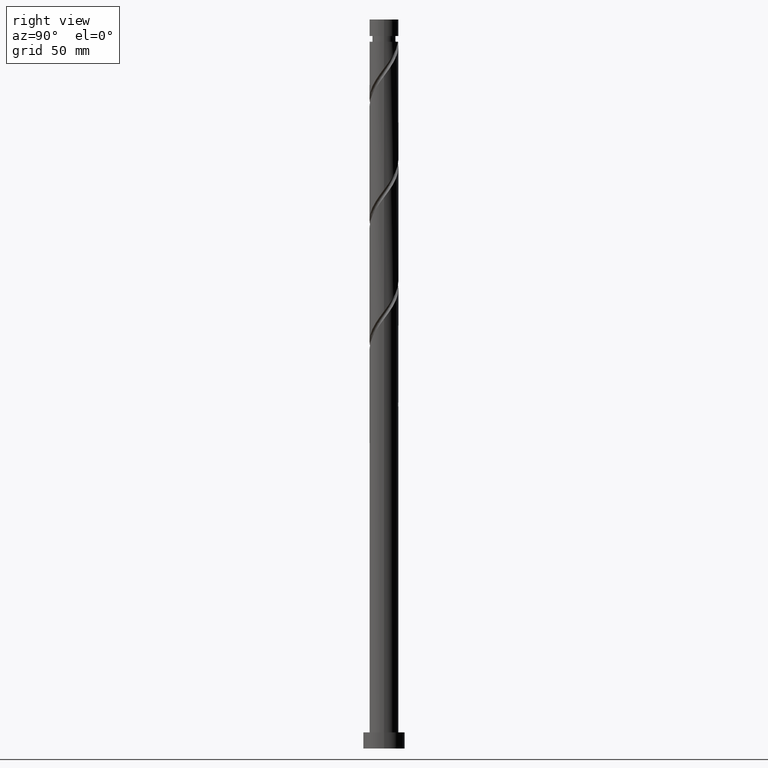
[diagram: clean part render]
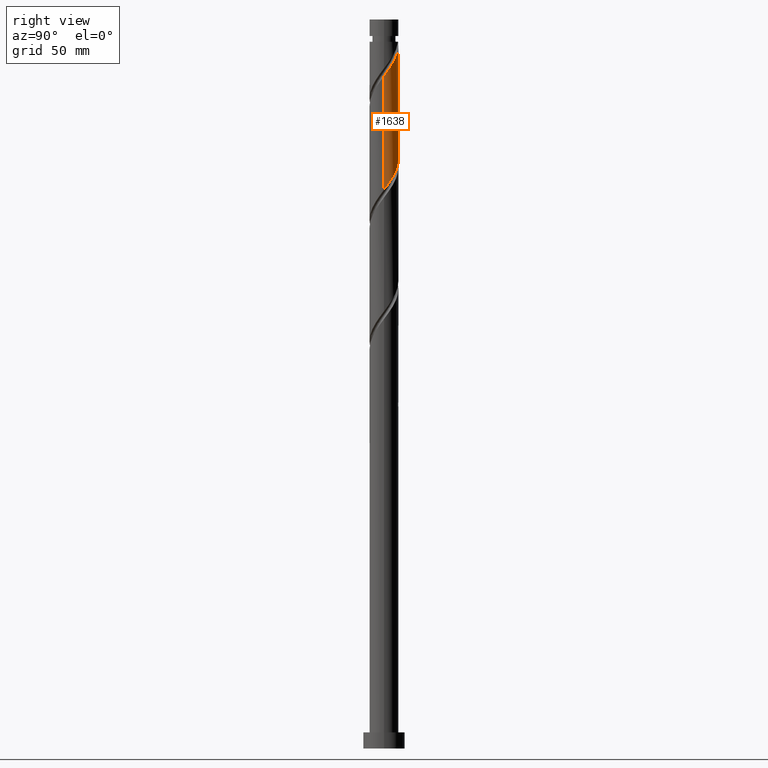
[diagram: same view with one face highlighted and labeled with its STEP entity id]
A machine part, right view. The second image highlights one B-rep face of the part: STEP entity #1638.
In plain terms, the highlighted cylindrical surface (edge-blend (fillet) strip) has radius 6.25 mm, axis along (-0, -0, -1).
Its self-contained STEP definition (entity closure, byte-faithful):
#6 = ORIENTED_EDGE ( 'NONE', *, *, #404, .F. ) ;
#17 = CARTESIAN_POINT ( 'NONE',  ( -5.984864800371902049, 1.933856053271457931, 265.0675190924107483 ) ) ;
#51 = CARTESIAN_POINT ( 'NONE',  ( 3.778103783078897937, 4.978798228918796198, 249.1300190924107483 ) ) ;
#55 = EDGE_CURVE ( 'NONE', #393, #477, #1153, .T. ) ;
#155 = CARTESIAN_POINT ( 'NONE',  ( 0.1503894396005508449, 6.248190379338386613, 303.5050190924108620 ) ) ;
#157 = CARTESIAN_POINT ( 'NONE',  ( -6.250000000000000888, 0.6281486345370177471, 266.8412650913532502 ) ) ;
#164 = CARTESIAN_POINT ( 'NONE',  ( 0.000000000000000000, 0.000000000000000000, 315.0000000000000000 ) ) ;
#177 = DIRECTION ( 'NONE',  ( -1.000000000000000000, 0.000000000000000000, 0.000000000000000000 ) ) ;
#179 = CARTESIAN_POINT ( 'NONE',  ( 6.231245559048651295, 0.8543914186961918400, 242.5675190924108051 ) ) ;
#200 = AXIS2_PLACEMENT_3D ( 'NONE', #595, #1012, #1595 ) ;
#276 = CARTESIAN_POINT ( 'NONE',  ( -6.250000000000000888, 7.089742422724978263E-16, 267.6795361703168510 ) ) ;
#312 = CARTESIAN_POINT ( 'NONE',  ( -3.473416191767960459, 5.243451713544183157, 259.4425190924107483 ) ) ;
#328 = CARTESIAN_POINT ( 'NONE',  ( 4.553108168431573510, 4.339079616700646902, 296.9425190924107483 ) ) ;
#336 = CARTESIAN_POINT ( 'NONE',  ( 6.250000000000001776, -2.291106235554282619E-15, 241.4295361703167657 ) ) ;
#350 = CARTESIAN_POINT ( 'NONE',  ( 1.933856053271459263, 5.984864800371902049, 251.9425190924107198 ) ) ;
#358 = CARTESIAN_POINT ( 'NONE',  ( 5.243451713544184045, 3.473416191767958683, 246.3175190924107767 ) ) ;
#370 = EDGE_CURVE ( 'NONE', #1806, #393, #818, .T. ) ;
#393 = VERTEX_POINT ( 'NONE', #276 ) ;
#404 = EDGE_CURVE ( 'NONE', #1802, #489, #1360, .T. ) ;
#423 = CARTESIAN_POINT ( 'NONE',  ( -6.250000000000000000, 0.000000000000000000, 315.0000000000000000 ) ) ;
#434 = CARTESIAN_POINT ( 'NONE',  ( 6.125000000000010658, 1.243734296383277149, 292.2550190924108051 ) ) ;
#460 = CARTESIAN_POINT ( 'NONE',  ( -4.553108168431563740, 4.339079616700646014, 261.3175190924108051 ) ) ;
#477 = VERTEX_POINT ( 'NONE', #336 ) ;
#478 = CARTESIAN_POINT ( 'NONE',  ( -1.243734296383331772, 6.124999999999954703, 305.3800190924108620 ) ) ;
#489 = VERTEX_POINT ( 'NONE', #478 ) ;
#499 = CARTESIAN_POINT ( 'NONE',  ( 4.791265665122413253, 4.013262180099761878, 247.2550190924107767 ) ) ;
#516 = CARTESIAN_POINT ( 'NONE',  ( 6.058070402885840977, 1.536972021111189912, 243.5050190924107198 ) ) ;
#581 = CARTESIAN_POINT ( 'NONE',  ( 6.250000000000010658, -1.813481482865430117E-15, 290.5805020145046456 ) ) ;
#595 = CARTESIAN_POINT ( 'NONE',  ( 0.000000000000000000, 0.000000000000000000, 305.3800190924107483 ) ) ;
#608 = CARTESIAN_POINT ( 'NONE',  ( -5.694676544888964465, 2.575492001364303896, 264.1300190924108051 ) ) ;
#629 = CARTESIAN_POINT ( 'NONE',  ( -0.1503894396005480971, 6.248190379338377731, 254.7550190924108335 ) ) ;
#638 = CIRCLE ( 'NONE', #200, 6.249999999999974243 ) ;
#646 = CARTESIAN_POINT ( 'NONE',  ( 6.250000000000001776, -2.291106235554282619E-15, 241.4295361703167657 ) ) ;
#783 = CARTESIAN_POINT ( 'NONE',  ( 0.5536125394950969225, 6.265135199628102392, 253.8175190924107483 ) ) ;
#791 = CARTESIAN_POINT ( 'NONE',  ( 3.217127949457151193, 5.404488289406027768, 250.0675190924107483 ) ) ;
#804 = ORIENTED_EDGE ( 'NONE', *, *, #1718, .T. ) ;
#818 = LINE ( 'NONE', #423, #1543 ) ;
#910 = CARTESIAN_POINT ( 'NONE',  ( -2.846484407647073223, 5.564173480133604244, 258.5050190924107483 ) ) ;
#916 = CARTESIAN_POINT ( 'NONE',  ( 5.694676544888975123, 2.575492001364305672, 294.1300190924108051 ) ) ;
#927 = CYLINDRICAL_SURFACE ( 'NONE', #1569, 6.250000000000000000 ) ;
#953 = CARTESIAN_POINT ( 'NONE',  ( -2.219552623526188651, 5.884895246723026219, 257.5675190924107483 ) ) ;
#1012 = DIRECTION ( 'NONE',  ( -0.000000000000000000, -0.000000000000000000, -1.000000000000000000 ) ) ;
#1040 = CARTESIAN_POINT ( 'NONE',  ( 4.013262180099769871, 4.791265665122420359, 297.8800190924107483 ) ) ;
#1053 = CARTESIAN_POINT ( 'NONE',  ( -4.013262180099762766, 4.791265665122413253, 260.3800190924107483 ) ) ;
#1071 = CARTESIAN_POINT ( 'NONE',  ( 4.978798228918805080, 3.778103783078901490, 296.0050190924108051 ) ) ;
#1074 = CARTESIAN_POINT ( 'NONE',  ( -1.536972021111190800, 6.058070402885839201, 256.6300190924107483 ) ) ;
#1080 = CARTESIAN_POINT ( 'NONE',  ( 1.536972021111196129, 6.058070402885848971, 301.6300190924108051 ) ) ;
#1082 = CARTESIAN_POINT ( 'NONE',  ( 5.564173480133604244, 2.846484407647072334, 245.3800190924106914 ) ) ;
#1107 = VECTOR ( 'NONE', #1712, 1000.000000000000000 ) ;
#1118 = LINE ( 'NONE', #1135, #1107 ) ;
#1135 = CARTESIAN_POINT ( 'NONE',  ( 6.250000000000000000, 7.654042494670957606E-16, 315.0000000000000000 ) ) ;
#1153 =( BOUNDED_CURVE ( )  B_SPLINE_CURVE ( 2, ( #1497, #157, #1352, #17, #608, #1209, #1795, #460, #1053, #312, #910, #953, #1074, #1228, #629, #783, #1405, #350, #1390, #791, #51, #1813, #499, #358, #1082, #1527, #516, #179, #1537, #1552, #646 ),
 .UNSPECIFIED., .F., .T. ) 
 B_SPLINE_CURVE_WITH_KNOTS ( ( 3, 2, 2, 2, 2, 2, 2, 2, 2, 2, 2, 2, 2, 2, 2, 3 ),
 ( 0.4295303401299221391, 0.4375000000000000000, 0.4464285714285714524, 0.4553571428571428492, 0.4642857142857143016, 0.4732142857142856984, 0.4821428571428571508, 0.4910714285714285476, 0.5000000000000000000, 0.5089285714285713969, 0.5178571428571429047, 0.5267857142857143016, 0.5357142857142856984, 0.5446428571428570953, 0.5535714285714286031, 0.5545303401299221946 ),
 .UNSPECIFIED. ) 
 CURVE ( )  GEOMETRIC_REPRESENTATION_ITEM ( )  RATIONAL_B_SPLINE_CURVE ( ( 0.9079949616361964182, 0.9039886423360596890, 0.9090909090909264911, 0.9033747362666013636, 0.9090909090909264911, 0.9033747362666013636, 0.9090909090909264911, 0.9033747362666013636, 0.9090909090909264911, 0.9033747362666013636, 0.9090909090909264911, 0.9033747362666013636, 0.9090909090909264911, 0.9033747362666013636, 0.9090909090909264911, 0.9033747362666013636, 0.9090909090909264911, 0.9033747362666013636, 0.9090909090909264911, 0.9033747362666013636, 0.9090909090909264911, 0.9033747362666013636, 0.9090909090909264911, 0.9033747362666013636, 0.9090909090909264911, 0.9033747362666013636, 0.9090909090909264911, 0.9033747362666013636, 0.9090909090909264911, 0.9084770030214681658, 0.9079949616361964182 ) ) 
 REPRESENTATION_ITEM ( '' )  );
#1179 = CARTESIAN_POINT ( 'NONE',  ( 6.250000000000015099, 0.6281486345369821089, 291.4187730934681326 ) ) ;
#1209 = CARTESIAN_POINT ( 'NONE',  ( -5.404488289406027768, 3.217127949457149860, 263.1925190924107483 ) ) ;
#1215 = CARTESIAN_POINT ( 'NONE',  ( 5.984864800371907378, 1.933856053271457931, 293.1925190924107483 ) ) ;
#1226 = CARTESIAN_POINT ( 'NONE',  ( 5.404488289406035761, 3.217127949457151637, 295.0675190924106914 ) ) ;
#1228 = CARTESIAN_POINT ( 'NONE',  ( -0.8543914186961930612, 6.231245559048653071, 255.6925190924107483 ) ) ;
#1234 = CARTESIAN_POINT ( 'NONE',  ( -1.243734296383331772, 6.124999999999954703, 305.3800190924108620 ) ) ;
#1267 = CARTESIAN_POINT ( 'NONE',  ( -6.249999999999974243, 0.000000000000000000, 305.3800190924107483 ) ) ;
#1352 = CARTESIAN_POINT ( 'NONE',  ( -6.125000000000000888, 1.243734296383277149, 266.0050190924107483 ) ) ;
#1357 = EDGE_CURVE ( 'NONE', #1806, #489, #638, .T. ) ;
#1360 =( BOUNDED_CURVE ( )  B_SPLINE_CURVE ( 2, ( #581, #1179, #434, #1215, #916, #1226, #1071, #328, #1040, #1637, #1524, #1791, #1080, #1502, #155, #1369, #1234 ),
 .UNSPECIFIED., .F., .T. ) 
 B_SPLINE_CURVE_WITH_KNOTS ( ( 3, 2, 2, 2, 2, 2, 2, 2, 3 ),
 ( 0.6795303401299217505, 0.6875000000000000000, 0.6964285714285713969, 0.7053571428571427937, 0.7142857142857144126, 0.7232142857142858094, 0.7321428571428573173, 0.7410714285714287142, 0.7500000000000001110 ),
 .UNSPECIFIED. ) 
 CURVE ( )  GEOMETRIC_REPRESENTATION_ITEM ( )  RATIONAL_B_SPLINE_CURVE ( ( 0.9079949616362026354, 0.9039886423360654621, 0.9090909090909321533, 0.9033747362666073588, 0.9090909090909321533, 0.9033747362666073588, 0.9090909090909321533, 0.9033747362666073588, 0.9090909090909321533, 0.9033747362666073588, 0.9090909090909321533, 0.9033747362666073588, 0.9090909090909321533, 0.9033747362666073588, 0.9090909090909321533, 0.9033747362666072478, 0.9090909090909322643 ) ) 
 REPRESENTATION_ITEM ( '' )  );
#1369 = CARTESIAN_POINT ( 'NONE',  ( -0.5536125394951039169, 6.265135199628109497, 304.4425190924107483 ) ) ;
#1379 = DIRECTION ( 'NONE',  ( -0.000000000000000000, -0.000000000000000000, -1.000000000000000000 ) ) ;
#1386 = ORIENTED_EDGE ( 'NONE', *, *, #1357, .T. ) ;
#1390 = CARTESIAN_POINT ( 'NONE',  ( 2.575492001364304784, 5.694676544888962688, 251.0050190924108051 ) ) ;
#1405 = CARTESIAN_POINT ( 'NONE',  ( 1.243734296383278259, 6.125000000000000888, 252.8800190924107483 ) ) ;
#1497 = CARTESIAN_POINT ( 'NONE',  ( -6.250000000000000000, 7.089742422724978263E-16, 267.6795361703168510 ) ) ;
#1502 = CARTESIAN_POINT ( 'NONE',  ( 0.8543914186961968360, 6.231245559048660176, 302.5675190924108051 ) ) ;
#1524 = CARTESIAN_POINT ( 'NONE',  ( 2.846484407647080328, 5.564173480133612237, 299.7550190924108620 ) ) ;
#1527 = CARTESIAN_POINT ( 'NONE',  ( 5.884895246723026219, 2.219552623526187318, 244.4425190924107483 ) ) ;
#1537 = CARTESIAN_POINT ( 'NONE',  ( 6.248190379338377731, 0.1503894396005470424, 241.6300190924107483 ) ) ;
#1543 = VECTOR ( 'NONE', #1917, 1000.000000000000000 ) ;
#1551 = CARTESIAN_POINT ( 'NONE',  ( 6.250000000000010658, -1.813481482865430117E-15, 290.5805020145046456 ) ) ;
#1552 = CARTESIAN_POINT ( 'NONE',  ( 6.250000000000001776, 0.07520560728992942146, 241.5298988585419124 ) ) ;
#1569 = AXIS2_PLACEMENT_3D ( 'NONE', #164, #1379, #177 ) ;
#1595 = DIRECTION ( 'NONE',  ( -1.000000000000000000, 0.000000000000000000, 0.000000000000000000 ) ) ;
#1637 = CARTESIAN_POINT ( 'NONE',  ( 3.473416191767966232, 5.243451713544187598, 298.8175190924105777 ) ) ;
#1638 = ADVANCED_FACE ( 'NONE', ( #1822 ), #927, .T. ) ;
#1663 = ORIENTED_EDGE ( 'NONE', *, *, #55, .F. ) ;
#1685 = ORIENTED_EDGE ( 'NONE', *, *, #370, .F. ) ;
#1693 = EDGE_LOOP ( 'NONE', ( #6, #804, #1663, #1685, #1386 ) ) ;
#1712 = DIRECTION ( 'NONE',  ( -0.000000000000000000, -0.000000000000000000, -1.000000000000000000 ) ) ;
#1718 = EDGE_CURVE ( 'NONE', #1802, #477, #1118, .T. ) ;
#1791 = CARTESIAN_POINT ( 'NONE',  ( 2.219552623526193980, 5.884895246723031548, 300.6925190924106914 ) ) ;
#1795 = CARTESIAN_POINT ( 'NONE',  ( -4.978798228918796198, 3.778103783078897049, 262.2550190924108051 ) ) ;
#1802 = VERTEX_POINT ( 'NONE', #1551 ) ;
#1806 = VERTEX_POINT ( 'NONE', #1267 ) ;
#1813 = CARTESIAN_POINT ( 'NONE',  ( 4.339079616700646014, 4.553108168431562852, 248.1925190924107483 ) ) ;
#1822 = FACE_OUTER_BOUND ( 'NONE', #1693, .T. ) ;
#1917 = DIRECTION ( 'NONE',  ( -0.000000000000000000, -0.000000000000000000, -1.000000000000000000 ) ) ;